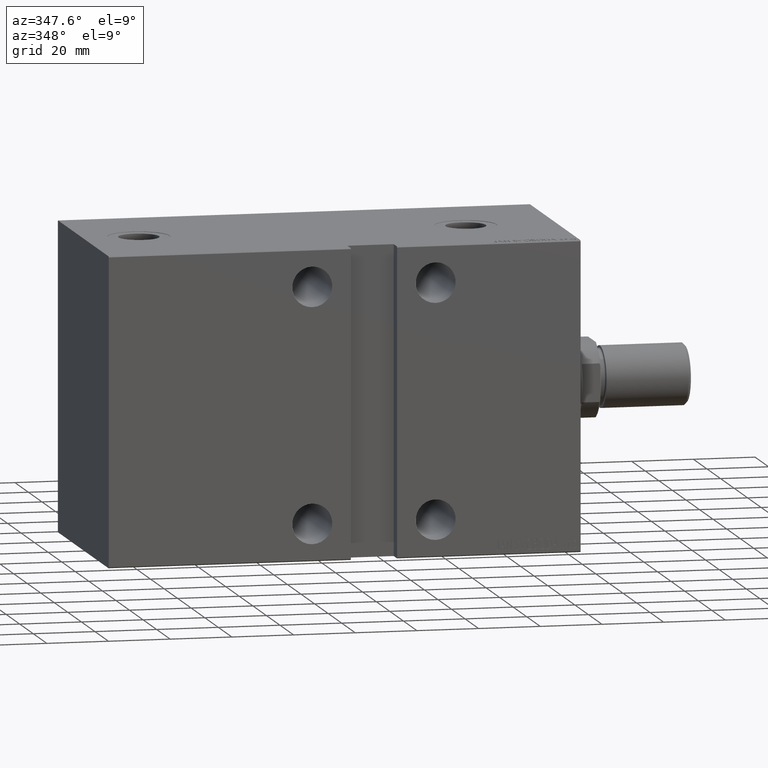
[diagram: clean part render]
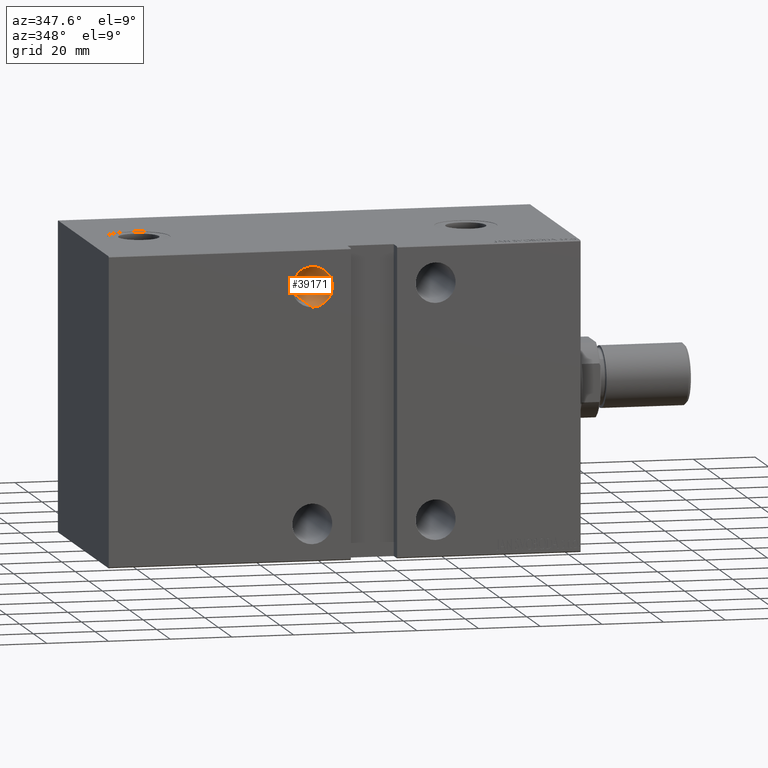
[diagram: same view with one face highlighted and labeled with its STEP entity id]
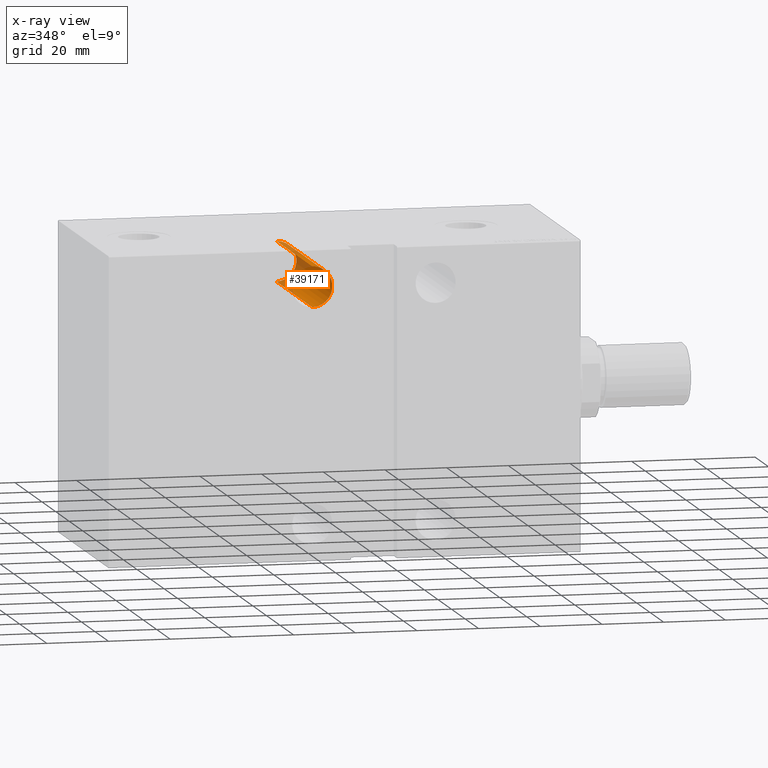
[diagram: x-ray of the same camera — body ghosted, the highlighted face saturated]
A machine part, auxiliary view. The second image highlights one B-rep face of the part: STEP entity #39171.
The next image is the same camera in x-ray: the body ghosted, the highlighted face saturated — about 24% of this face is hidden behind the body in this view.
In plain terms, the highlighted cylindrical surface (edge-blend (fillet) strip) has radius 6.5 mm, axis along (0, -1, -0).
Its self-contained STEP definition (entity closure, byte-faithful):
#422 = CIRCLE ( 'NONE', #6183, 6.500000000000005329 ) ;
#1556 = CARTESIAN_POINT ( 'NONE',  ( 87.00000000000000000, -37.50000000000004974, 31.50000000000000000 ) ) ;
#1914 = DIRECTION ( 'NONE',  ( 0.000000000000000000, 0.000000000000000000, 1.000000000000000000 ) ) ;
#2228 = CARTESIAN_POINT ( 'NONE',  ( 87.00000000000000000, -15.49999999999999289, 38.00000000000000711 ) ) ;
#3158 = CARTESIAN_POINT ( 'NONE',  ( 87.00000000000000000, 37.50000000000004263, 38.00000000000000711 ) ) ;
#3213 = DIRECTION ( 'NONE',  ( -0.000000000000000000, 1.000000000000000000, -0.000000000000000000 ) ) ;
#4834 = FACE_OUTER_BOUND ( 'NONE', #40824, .T. ) ;
#5049 = CYLINDRICAL_SURFACE ( 'NONE', #38473, 6.500000000000005329 ) ;
#6183 = AXIS2_PLACEMENT_3D ( 'NONE', #3158, #33437, #27146 ) ;
#9031 = CARTESIAN_POINT ( 'NONE',  ( 87.00000000000000000, 37.50000000000004263, 31.50000000000000000 ) ) ;
#9794 = ORIENTED_EDGE ( 'NONE', *, *, #24943, .F. ) ;
#11754 = DIRECTION ( 'NONE',  ( -0.000000000000000000, 1.000000000000000000, -0.000000000000000000 ) ) ;
#12000 = VECTOR ( 'NONE', #28682, 1000.000000000000000 ) ;
#12763 = DIRECTION ( 'NONE',  ( -0.000000000000000000, 1.000000000000000000, -0.000000000000000000 ) ) ;
#13603 = EDGE_CURVE ( 'NONE', #23057, #39518, #25765, .T. ) ;
#13953 = CARTESIAN_POINT ( 'NONE',  ( 87.00000000000000000, -37.50000000000004974, 44.50000000000001421 ) ) ;
#14033 = ORIENTED_EDGE ( 'NONE', *, *, #13603, .T. ) ;
#15131 = CARTESIAN_POINT ( 'NONE',  ( 87.00000000000000000, -37.50000000000004974, 38.00000000000000711 ) ) ;
#20081 = CARTESIAN_POINT ( 'NONE',  ( 87.00000000000000000, 37.50000000000004263, 44.50000000000001421 ) ) ;
#20723 = CARTESIAN_POINT ( 'NONE',  ( 87.00000000000000000, -15.49999999999999289, 44.50000000000001421 ) ) ;
#22567 = ORIENTED_EDGE ( 'NONE', *, *, #32268, .T. ) ;
#23057 = VERTEX_POINT ( 'NONE', #39886 ) ;
#24024 = VECTOR ( 'NONE', #3213, 1000.000000000000000 ) ;
#24943 = EDGE_CURVE ( 'NONE', #23057, #40167, #26032, .T. ) ;
#25765 = LINE ( 'NONE', #1556, #12000 ) ;
#25930 = VERTEX_POINT ( 'NONE', #20081 ) ;
#26032 = CIRCLE ( 'NONE', #28908, 6.500000000000005329 ) ;
#26443 = DIRECTION ( 'NONE',  ( 0.000000000000000000, 0.000000000000000000, -1.000000000000000000 ) ) ;
#27146 = DIRECTION ( 'NONE',  ( 0.000000000000000000, 0.000000000000000000, 1.000000000000000000 ) ) ;
#28682 = DIRECTION ( 'NONE',  ( -0.000000000000000000, 1.000000000000000000, -0.000000000000000000 ) ) ;
#28908 = AXIS2_PLACEMENT_3D ( 'NONE', #2228, #12763, #26443 ) ;
#30408 = EDGE_CURVE ( 'NONE', #40167, #25930, #44239, .T. ) ;
#32268 = EDGE_CURVE ( 'NONE', #39518, #25930, #422, .T. ) ;
#33437 = DIRECTION ( 'NONE',  ( 0.000000000000000000, 1.000000000000000000, 0.000000000000000000 ) ) ;
#37157 = ORIENTED_EDGE ( 'NONE', *, *, #30408, .F. ) ;
#38473 = AXIS2_PLACEMENT_3D ( 'NONE', #15131, #11754, #1914 ) ;
#39171 = ADVANCED_FACE ( 'NONE', ( #4834 ), #5049, .F. ) ;
#39518 = VERTEX_POINT ( 'NONE', #9031 ) ;
#39886 = CARTESIAN_POINT ( 'NONE',  ( 87.00000000000000000, -15.49999999999999289, 31.50000000000000000 ) ) ;
#40167 = VERTEX_POINT ( 'NONE', #20723 ) ;
#40824 = EDGE_LOOP ( 'NONE', ( #9794, #14033, #22567, #37157 ) ) ;
#44239 = LINE ( 'NONE', #13953, #24024 ) ;